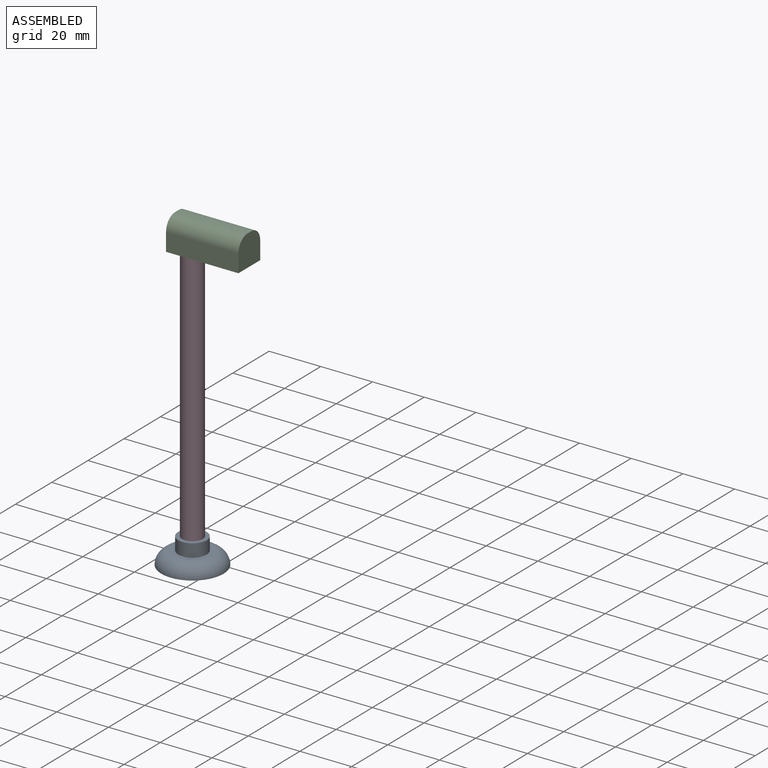
[diagram: assembled view]
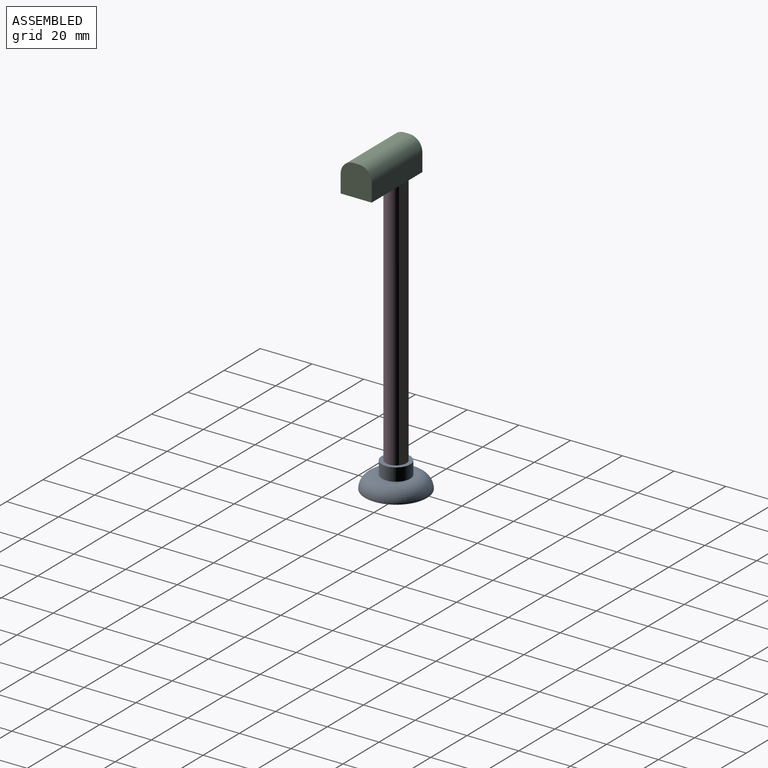
[diagram: assembled view, second angle]
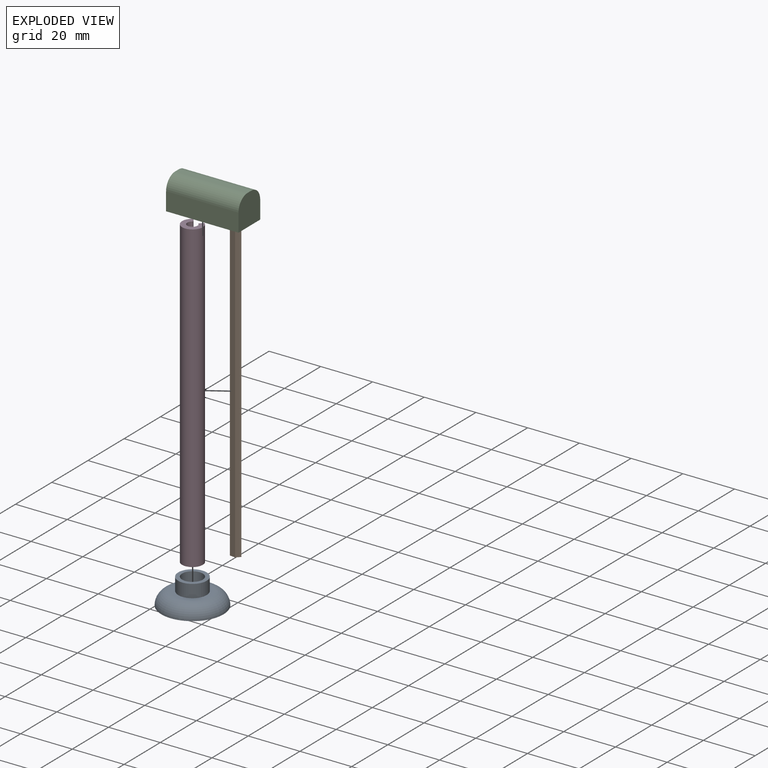
[diagram: exploded view]
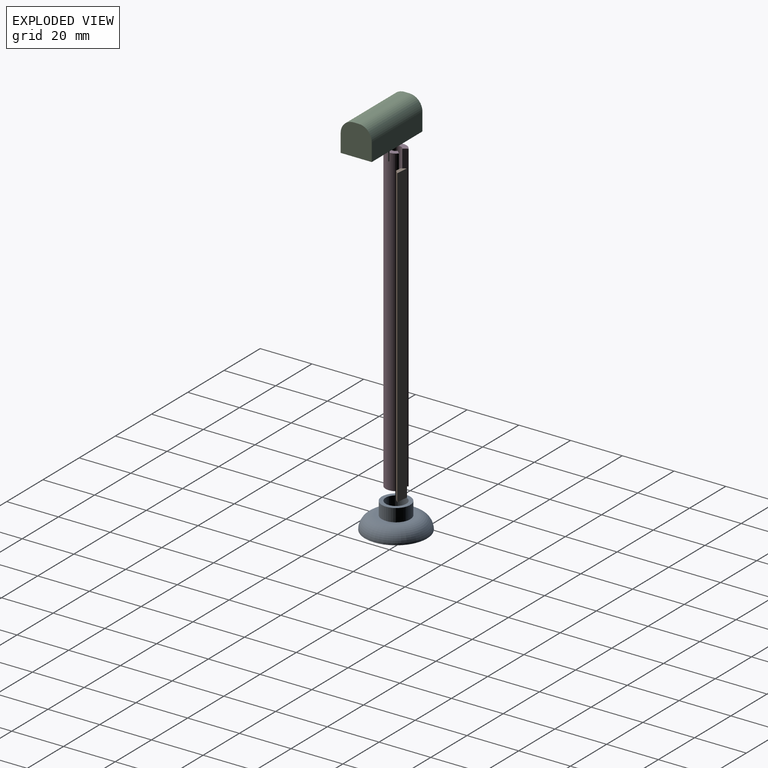
[diagram: exploded view, second angle]
ASSEMBLY  parts=4 mates=3
PART A: 8 faces, bbox 26x26x10 mm
  f0: plane 14x14mm, normal (0,0,1), area 58.9mm2, adj f2,f3
  f1: plane 24x24mm, normal (0,0,-1), area 439.8mm2, adj f2,f7
  f2: torus R=7mm, axis (0,0,1), area 502.5mm2, adj f0,f1
  f3: cylinder r=5.5mm len=11mm, axis (0,0,-1), area 172.8mm2, adj f0,f4
  f4: plane 11x11mm, normal (0,0,1), area 44.8mm2, adj f3,f6
  f5: plane 8x8mm, normal (0,0,1), area 37.7mm2, adj f6,f7
  f6: cylinder r=4mm len=9mm, axis (0,0,1), area 226.2mm2, adj f4,f5
  f7: cylinder r=2mm len=4mm, axis (0,0,-1), area 12.6mm2, adj f1,f5
PART B: 6 faces, bbox 4.7x1.6x115 mm
  f0: plane 115x1.57mm, normal (-0.78,-0.62,0), area 230.4mm2, adj f1,f3,f4,f5
  f1: plane 115x2.21mm, normal (0,-1,0), area 253.7mm2, adj f0,f2,f4,f5
  f2: plane 115x1.57mm, normal (0.78,-0.62,0), area 230.4mm2, adj f1,f3,f4,f5
  f3: plane 115x4.69mm, normal (0,1,0), area 539.9mm2, adj f0,f2,f4,f5
  f4: plane 4.69x1.57mm, normal (0,0,1), area 5.4mm2, adj f0,f1,f2,f3
  f5: plane 4.69x1.57mm, normal (0,0,-1), area 5.4mm2, adj f0,f1,f2,f3
PART C: 18 faces, bbox 28x12x12 mm
  f0: plane 28x7mm, normal (0,1,0), area 196mm2, adj f1,f3,f5,f7
  f1: plane 12x12mm, normal (-1,0,0), area 133.3mm2, adj f0,f2,f4,f5,f6,f7
  f2: plane 28x7mm, normal (0,-1,0), area 196mm2, adj f1,f3,f5,f6
  f3: plane 12x12mm, normal (1,0,0), area 133.3mm2, adj f0,f2,f4,f5,f6,f7
  f4: plane 28x2mm, normal (0,0,1), area 56mm2, adj f1,f3,f6,f7
  f5: plane 28x12mm, normal (0,0,-1), area 121mm2, adj f0,f1,f2,f3,f8,f10,f11,f12
  f6: cylinder r=5mm len=28mm, axis (-1,0,0), area 219.9mm2, adj f1,f2,f3,f4
  f7: cylinder r=5mm len=28mm, axis (1,0,0), area 219.9mm2, adj f0,f1,f3,f4
  f8: cylinder r=4mm len=9mm, axis (0,0,-1), area 205.3mm2, adj f5,f9,f10,f11,f17
  f9: plane 8x8mm, normal (0,0,-1), area 50.3mm2, adj f8
  f10: plane 5x1.54mm, normal (0,1,0), area 7.7mm2, adj f5,f8,f16,f17
  f11: plane 5x1.54mm, normal (0,-1,0), area 7.7mm2, adj f5,f8,f12,f17
  f12: plane 5x3mm, normal (1,0,0), area 15mm2, adj f5,f11,f13,f17
  f13: plane 16x5mm, normal (0,-1,0), area 80mm2, adj f5,f12,f14,f17
  f14: plane 10x5mm, normal (-1,0,0), area 50mm2, adj f5,f13,f15,f17
  f15: plane 16x5mm, normal (0,1,0), area 80mm2, adj f5,f14,f16,f17
  f16: plane 5x3mm, normal (1,0,0), area 15mm2, adj f5,f10,f15,f17
  f17: plane 17.54x10mm, normal (0,0,-1), area 164.7mm2, adj f8,f10,f11,f12,f13,f14,f15,f16
PART D: 6 faces, bbox 8x7.5x118 mm
  f0: cylinder r=2mm len=118mm, axis (0,0,-1), area 1207.1mm2, adj f1,f3,f4,f5
  f1: plane 118x1.69mm, normal (0.84,0.54,0), area 236.4mm2, adj f0,f2,f4,f5
  f2: cylinder r=4mm len=118mm, axis (0,0,-1), area 2373.7mm2, adj f1,f3,f4,f5
  f3: plane 118x1.43mm, normal (-0.72,0.7,0), area 236.4mm2, adj f0,f2,f4,f5
  f4: plane 8x7.46mm, normal (0,0,1), area 30.3mm2, adj f0,f1,f2,f3
  f5: plane 8x7.46mm, normal (0,0,-1), area 30.3mm2, adj f0,f1,f2,f3
PLACE A t=(-44,-20.54,26.72)mm
PLACE B rot(axis=(0,0,-1),5.9deg) t=(-25.69,-28.17,29.22)mm
PLACE C t=(-86.19,-14.58,136.72)mm
PLACE D t=(-20.9,-17.48,27.72)mm
MATE fastened B.f0 <-> D.f1  axis (-0.84,-0.54,0) through (-65.05,22.66,86.72)mm
MATE fastened C.f8 <-> D.f0  axis (0,0,-1) through (-63.59,20.04,145.72)mm
MATE fastened D.f0 <-> A.f2  axis (0,0,-1) through (-63.59,20.04,27.72)mm
